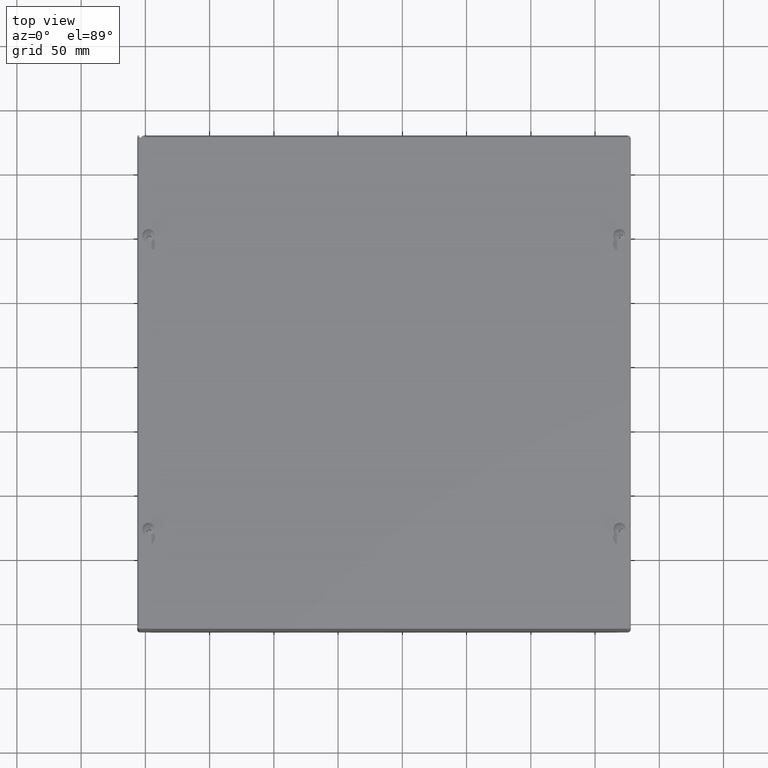
[diagram: clean part render]
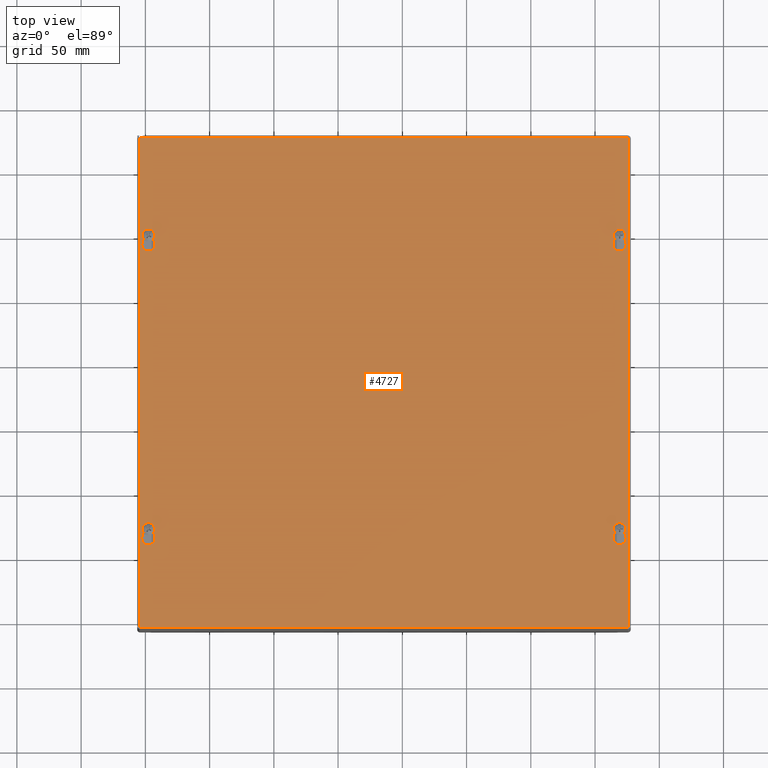
[diagram: same view with one face highlighted and labeled with its STEP entity id]
A machine part, top view. The second image highlights one B-rep face of the part: STEP entity #4727.
In plain terms, the highlighted planar face has unit normal (0, -0, 1).
Its self-contained STEP definition (entity closure, byte-faithful):
#513=LINE($,#8592,#864);
#517=LINE($,#8602,#868);
#520=LINE($,#8610,#871);
#524=LINE($,#8622,#875);
#529=LINE($,#8640,#880);
#533=LINE($,#8650,#884);
#536=LINE($,#8658,#887);
#540=LINE($,#8670,#891);
#542=LINE($,#8678,#893);
#546=LINE($,#8686,#897);
#549=LINE($,#8692,#900);
#552=LINE($,#8697,#903);
#864=VECTOR($,#6053,0.269957404051827);
#868=VECTOR($,#6065,0.269957404051828);
#871=VECTOR($,#6070,0.269957404051828);
#875=VECTOR($,#6082,0.269957404051828);
#880=VECTOR($,#6101,0.269957404051827);
#884=VECTOR($,#6113,0.269957404051827);
#887=VECTOR($,#6118,0.269957404051827);
#891=VECTOR($,#6130,0.269957404051828);
#893=VECTOR($,#6140,15.);
#897=VECTOR($,#6146,15.);
#900=VECTOR($,#6151,15.);
#903=VECTOR($,#6156,15.);
#1012=PLANE($,#5096);
#1199=FACE_BOUND($,#1803,.T.);
#1200=FACE_BOUND($,#1804,.T.);
#1201=FACE_BOUND($,#1805,.T.);
#1202=FACE_BOUND($,#1806,.T.);
#1203=FACE_BOUND($,#1807,.T.);
#1803=EDGE_LOOP($,(#4023,#4024,#4025,#4026));
#1804=EDGE_LOOP($,(#4027,#4028,#4029,#4030));
#1805=EDGE_LOOP($,(#4031,#4032,#4033,#4034));
#1806=EDGE_LOOP($,(#4035,#4036,#4037,#4038));
#1807=EDGE_LOOP($,(#4039,#4040,#4041,#4042));
#1946=CIRCLE($,#5062,0.203);
#1948=CIRCLE($,#5066,0.12499999999952);
#1950=CIRCLE($,#5071,0.12499999999952);
#1952=CIRCLE($,#5075,0.203);
#1954=CIRCLE($,#5078,0.203);
#1956=CIRCLE($,#5082,0.12499999999952);
#1958=CIRCLE($,#5087,0.12499999999952);
#1960=CIRCLE($,#5091,0.203);
#2304=VERTEX_POINT($,#8583);
#2305=VERTEX_POINT($,#8585);
#2307=VERTEX_POINT($,#8591);
#2309=VERTEX_POINT($,#8597);
#2312=VERTEX_POINT($,#8607);
#2313=VERTEX_POINT($,#8609);
#2315=VERTEX_POINT($,#8615);
#2317=VERTEX_POINT($,#8621);
#2320=VERTEX_POINT($,#8631);
#2321=VERTEX_POINT($,#8633);
#2323=VERTEX_POINT($,#8639);
#2325=VERTEX_POINT($,#8645);
#2328=VERTEX_POINT($,#8655);
#2329=VERTEX_POINT($,#8657);
#2331=VERTEX_POINT($,#8663);
#2333=VERTEX_POINT($,#8669);
#2334=VERTEX_POINT($,#8676);
#2335=VERTEX_POINT($,#8677);
#2338=VERTEX_POINT($,#8685);
#2340=VERTEX_POINT($,#8691);
#2866=EDGE_CURVE($,#2305,#2304,#1946,.T.);
#2869=EDGE_CURVE($,#2307,#2305,#513,.T.);
#2872=EDGE_CURVE($,#2309,#2307,#1948,.T.);
#2875=EDGE_CURVE($,#2304,#2309,#517,.T.);
#2878=EDGE_CURVE($,#2313,#2312,#520,.T.);
#2881=EDGE_CURVE($,#2315,#2313,#1950,.T.);
#2884=EDGE_CURVE($,#2317,#2315,#524,.T.);
#2887=EDGE_CURVE($,#2312,#2317,#1952,.T.);
#2890=EDGE_CURVE($,#2321,#2320,#1954,.T.);
#2893=EDGE_CURVE($,#2323,#2321,#529,.T.);
#2896=EDGE_CURVE($,#2325,#2323,#1956,.T.);
#2899=EDGE_CURVE($,#2320,#2325,#533,.T.);
#2902=EDGE_CURVE($,#2329,#2328,#536,.T.);
#2905=EDGE_CURVE($,#2331,#2329,#1958,.T.);
#2908=EDGE_CURVE($,#2333,#2331,#540,.T.);
#2911=EDGE_CURVE($,#2328,#2333,#1960,.T.);
#2912=EDGE_CURVE($,#2334,#2335,#542,.T.);
#2916=EDGE_CURVE($,#2335,#2338,#546,.T.);
#2919=EDGE_CURVE($,#2338,#2340,#549,.T.);
#2922=EDGE_CURVE($,#2340,#2334,#552,.T.);
#4023=ORIENTED_EDGE($,*,*,#2866,.T.);
#4024=ORIENTED_EDGE($,*,*,#2875,.T.);
#4025=ORIENTED_EDGE($,*,*,#2872,.T.);
#4026=ORIENTED_EDGE($,*,*,#2869,.T.);
#4027=ORIENTED_EDGE($,*,*,#2878,.T.);
#4028=ORIENTED_EDGE($,*,*,#2887,.T.);
#4029=ORIENTED_EDGE($,*,*,#2884,.T.);
#4030=ORIENTED_EDGE($,*,*,#2881,.T.);
#4031=ORIENTED_EDGE($,*,*,#2890,.T.);
#4032=ORIENTED_EDGE($,*,*,#2899,.T.);
#4033=ORIENTED_EDGE($,*,*,#2896,.T.);
#4034=ORIENTED_EDGE($,*,*,#2893,.T.);
#4035=ORIENTED_EDGE($,*,*,#2902,.T.);
#4036=ORIENTED_EDGE($,*,*,#2911,.T.);
#4037=ORIENTED_EDGE($,*,*,#2908,.T.);
#4038=ORIENTED_EDGE($,*,*,#2905,.T.);
#4039=ORIENTED_EDGE($,*,*,#2912,.F.);
#4040=ORIENTED_EDGE($,*,*,#2922,.F.);
#4041=ORIENTED_EDGE($,*,*,#2919,.F.);
#4042=ORIENTED_EDGE($,*,*,#2916,.F.);
#4727=ADVANCED_FACE($,(#1199,#1200,#1201,#1202,#1203),#1012,.T.);
#5062=AXIS2_PLACEMENT_3D($,#8586,#6047,#6048);
#5066=AXIS2_PLACEMENT_3D($,#8598,#6059,#6060);
#5071=AXIS2_PLACEMENT_3D($,#8616,#6076,#6077);
#5075=AXIS2_PLACEMENT_3D($,#8626,#6088,#6089);
#5078=AXIS2_PLACEMENT_3D($,#8634,#6095,#6096);
#5082=AXIS2_PLACEMENT_3D($,#8646,#6107,#6108);
#5087=AXIS2_PLACEMENT_3D($,#8664,#6124,#6125);
#5091=AXIS2_PLACEMENT_3D($,#8674,#6136,#6137);
#5096=AXIS2_PLACEMENT_3D($,#8699,#6158,#6159);
#6047=DIRECTION('center_axis',(0.,0.,-1.));
#6048=DIRECTION('ref_axis',(-0.960702505507452,0.277580071171733,0.));
#6053=DIRECTION($,(0.277580071171738,-0.960702505507451,0.));
#6059=DIRECTION('center_axis',(0.,0.,-1.));
#6060=DIRECTION('ref_axis',(0.960702505507453,0.277580071171729,0.));
#6065=DIRECTION($,(0.277580071171732,0.960702505507452,0.));
#6070=DIRECTION($,(0.277580071171738,-0.96070250550745,0.));
#6076=DIRECTION('center_axis',(0.,0.,-1.));
#6077=DIRECTION('ref_axis',(0.960702505507453,0.277580071171729,0.));
#6082=DIRECTION($,(0.277580071171732,0.960702505507452,0.));
#6088=DIRECTION('center_axis',(0.,0.,-1.));
#6089=DIRECTION('ref_axis',(-0.960702505507452,0.277580071171733,0.));
#6095=DIRECTION('center_axis',(0.,0.,-1.));
#6096=DIRECTION('ref_axis',(-0.960702505507452,0.277580071171733,0.));
#6101=DIRECTION($,(0.277580071171738,-0.960702505507451,0.));
#6107=DIRECTION('center_axis',(0.,0.,-1.));
#6108=DIRECTION('ref_axis',(0.960702505507453,0.277580071171729,0.));
#6113=DIRECTION($,(0.277580071171733,0.960702505507452,0.));
#6118=DIRECTION($,(0.277580071171738,-0.960702505507451,0.));
#6124=DIRECTION('center_axis',(0.,0.,-1.));
#6125=DIRECTION('ref_axis',(0.960702505507453,0.277580071171729,0.));
#6130=DIRECTION($,(0.277580071171732,0.960702505507452,0.));
#6136=DIRECTION('center_axis',(0.,0.,-1.));
#6137=DIRECTION('ref_axis',(-0.960702505507452,0.277580071171733,0.));
#6140=DIRECTION($,(-1.8649415636748E-016,-1.,0.));
#6146=DIRECTION($,(-1.,2.79741234551221E-016,0.));
#6151=DIRECTION($,(9.32470781837402E-017,1.,0.));
#6156=DIRECTION($,(1.,-1.8649415636748E-016,0.));
#6158=DIRECTION('center_axis',(0.,0.,1.));
#6159=DIRECTION('ref_axis',(1.,0.,0.));
#8583=CARTESIAN_POINT('',(7.02372739138199,-4.72465124555655,0.062));
#8585=CARTESIAN_POINT('',(7.41377260861801,-4.72465124555655,0.062));
#8586=CARTESIAN_POINT('Origin',(7.21875,-4.78100000000442,0.062));
#8591=CARTESIAN_POINT('',(7.33883781318797,-4.46530249110368,0.062));
#8592=CARTESIAN_POINT($,(6.49818864817602,-1.55582215387852,0.062));
#8597=CARTESIAN_POINT('',(7.09866218681203,-4.46530249110368,0.062));
#8598=CARTESIAN_POINT('Origin',(7.21875,-4.50000000000001,0.062));
#8602=CARTESIAN_POINT($,(7.42056903842637,-3.35118533715792,0.062));
#8607=CARTESIAN_POINT('',(-7.02372739138198,-4.72465124555655,0.062));
#8609=CARTESIAN_POINT('',(-7.09866218681203,-4.46530249110367,0.062));
#8610=CARTESIAN_POINT($,(-7.38310164071135,-3.48085971438438,0.062));
#8615=CARTESIAN_POINT('',(-7.33883781318797,-4.46530249110367,0.062));
#8616=CARTESIAN_POINT('Origin',(-7.21875,-4.50000000000001,0.062));
#8621=CARTESIAN_POINT('',(-7.41377260861801,-4.72465124555655,0.062));
#8622=CARTESIAN_POINT($,(-6.46072125046102,-1.42614777665209,0.062));
#8626=CARTESIAN_POINT('Origin',(-7.21875,-4.78100000000441,0.062));
#8631=CARTESIAN_POINT('',(7.02372739138199,4.27534875444345,0.062));
#8633=CARTESIAN_POINT('',(7.41377260861802,4.27534875444344,0.062));
#8634=CARTESIAN_POINT('Origin',(7.21875,4.21899999999558,0.062));
#8639=CARTESIAN_POINT('',(7.33883781318797,4.53469750889632,0.062));
#8640=CARTESIAN_POINT($,(7.69821206251733,3.29090597772416,0.062));
#8645=CARTESIAN_POINT('',(7.09866218681203,4.53469750889632,0.062));
#8646=CARTESIAN_POINT('Origin',(7.21875,4.49999999999999,0.062));
#8650=CARTESIAN_POINT($,(6.22054562408508,1.49554279444475,0.062));
#8655=CARTESIAN_POINT('',(-7.02372739138198,4.27534875444345,0.062));
#8657=CARTESIAN_POINT('',(-7.09866218681203,4.53469750889633,0.062));
#8658=CARTESIAN_POINT($,(-6.18307822637003,1.3658684172183,0.062));
#8663=CARTESIAN_POINT('',(-7.33883781318797,4.53469750889633,0.062));
#8664=CARTESIAN_POINT('Origin',(-7.21875,4.49999999999999,0.062));
#8669=CARTESIAN_POINT('',(-7.41377260861801,4.27534875444345,0.062));
#8670=CARTESIAN_POINT($,(-7.66074466480231,3.42058035495057,0.062));
#8674=CARTESIAN_POINT('Origin',(-7.21875,4.21899999999559,0.062));
#8676=CARTESIAN_POINT('',(7.5,7.5,0.062));
#8677=CARTESIAN_POINT('',(7.5,-7.5,0.062));
#8678=CARTESIAN_POINT($,(7.5,7.5,0.062));
#8685=CARTESIAN_POINT('',(-7.5,-7.5,0.062));
#8686=CARTESIAN_POINT($,(7.5,-7.5,0.062));
#8691=CARTESIAN_POINT('',(-7.5,7.5,0.062));
#8692=CARTESIAN_POINT($,(-7.5,-7.5,0.062));
#8697=CARTESIAN_POINT($,(-7.5,7.5,0.062));
#8699=CARTESIAN_POINT('Origin',(3.49676543189026E-016,-1.62122760933094E-015,
0.062));